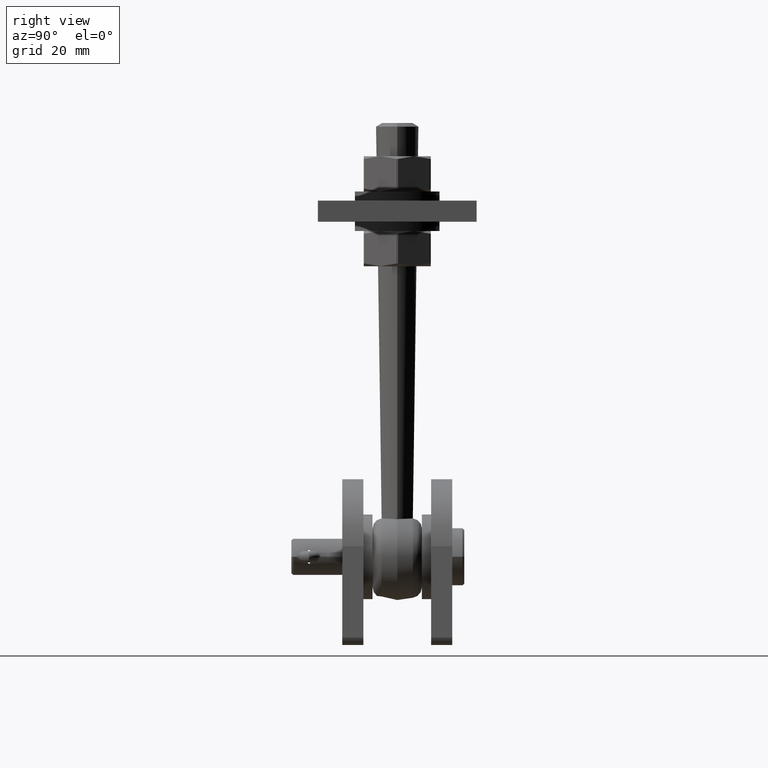
[diagram: clean part render]
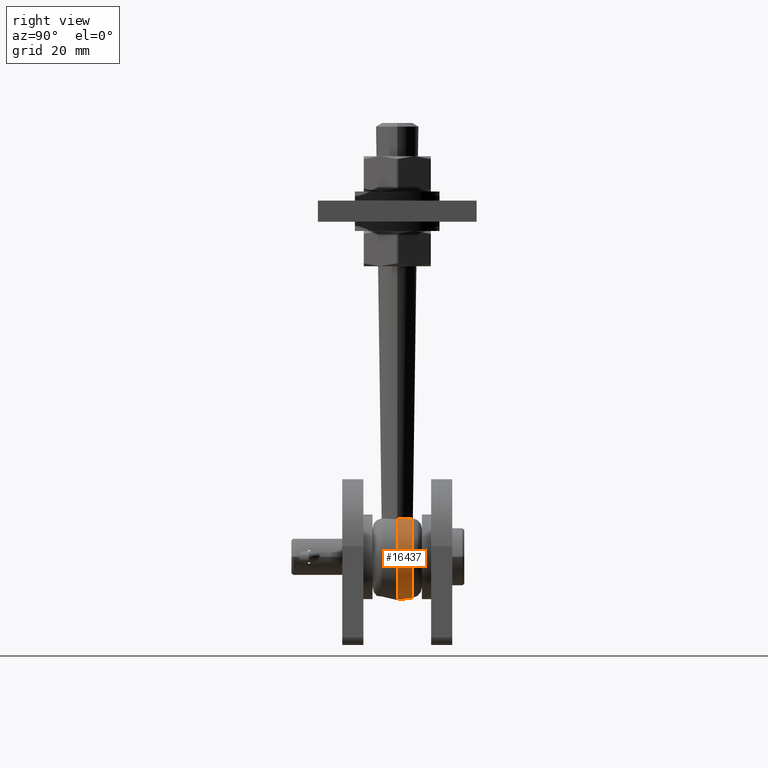
[diagram: same view with one face highlighted and labeled with its STEP entity id]
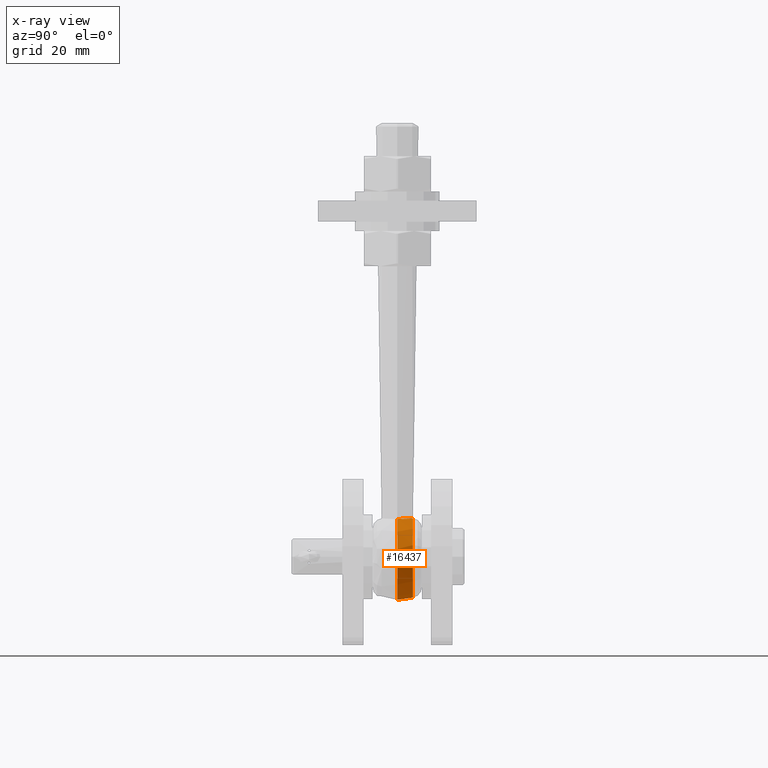
[diagram: x-ray of the same camera — body ghosted, the highlighted face saturated]
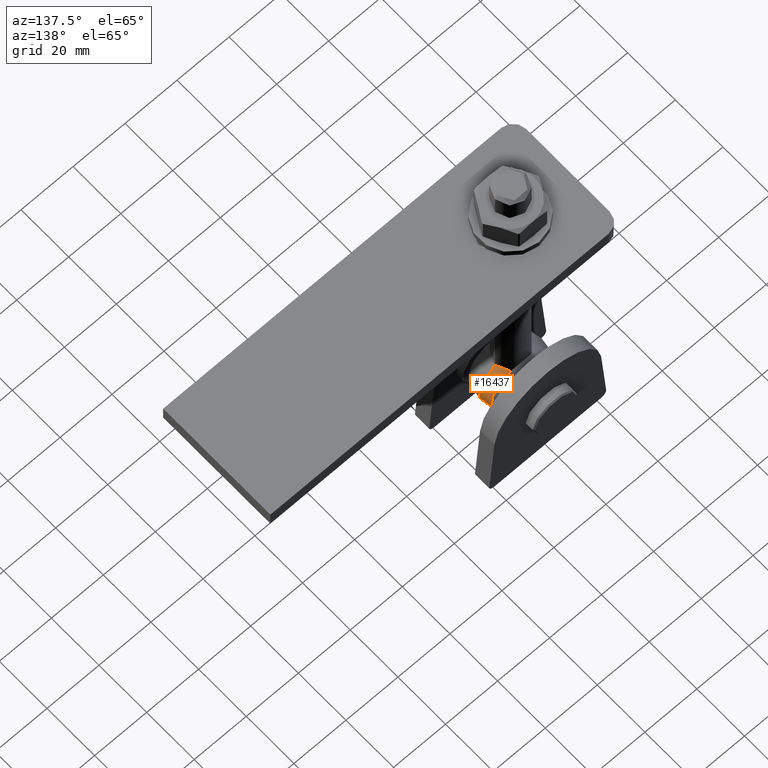
[diagram: same view with one face highlighted and labeled with its STEP entity id]
A machine part, right view. The second image highlights one B-rep face of the part: STEP entity #16437.
The next image is the same camera in x-ray: the body ghosted, the highlighted face saturated — about 0% of this face is hidden behind the body in this view.
A second angle (auxiliary view) of the same face is appended — the face is thin or edge-on in the first view.
In plain terms, the highlighted conical surface has half-angle 8.13 deg.
Its self-contained STEP definition (entity closure, byte-faithful):
#30 = B_SPLINE_CURVE_WITH_KNOTS ( 'NONE', 3,
 ( #13274, #9294, #4055, #14630, #12079, #6649, #4168, #62, #13346, #5383 ),
 .UNSPECIFIED., .F., .F.,
 ( 4, 2, 2, 2, 4 ),
 ( 1.997075450112942525E-07, 0.001245221226256199888, 0.002490242744967388708, 0.003735264263678577529, 0.004980285782389765915 ),
 .UNSPECIFIED. ) ;
#62 = CARTESIAN_POINT ( 'NONE',  ( 4.628785364432085103, 3.840176850458393965, 10.74974455852678545 ) ) ;
#1437 = AXIS2_PLACEMENT_3D ( 'NONE', #15376, #7423, #2130 ) ;
#1478 = VERTEX_POINT ( 'NONE', #15433 ) ;
#1789 = DIRECTION ( 'NONE',  ( 0.000000000000000000, -1.000000000000000000, 0.000000000000000000 ) ) ;
#2130 = DIRECTION ( 'NONE',  ( 0.000000000000000000, 0.000000000000000000, 1.000000000000000000 ) ) ;
#2696 = ORIENTED_EDGE ( 'NONE', *, *, #3497, .T. ) ;
#3069 = CARTESIAN_POINT ( 'NONE',  ( 0.000000000000000000, 1.734723475976807094E-15, -1.469576158976824144E-15 ) ) ;
#3379 = CIRCLE ( 'NONE', #1437, 12.25000000000000000 ) ;
#3497 = EDGE_CURVE ( 'NONE', #4141, #1478, #3379, .T. ) ;
#4055 = CARTESIAN_POINT ( 'NONE',  ( 5.957273684027327043, 0.8267433984706894501, 10.56872820745302377 ) ) ;
#4141 = VERTEX_POINT ( 'NONE', #4438 ) ;
#4168 = CARTESIAN_POINT ( 'NONE',  ( 5.113892609555588997, 3.165551226991907274, 10.63463681237543490 ) ) ;
#4180 = CONICAL_SURFACE ( 'NONE', #11047, 12.25000000000000000, 0.1418970546041642966 ) ;
#4438 = CARTESIAN_POINT ( 'NONE',  ( 6.000000000000000888, 1.467973360395179333E-15, 10.68000468164690986 ) ) ;
#5079 = EDGE_CURVE ( 'NONE', #10023, #12042, #9231, .T. ) ;
#5383 = CARTESIAN_POINT ( 'NONE',  ( 4.052886311050992063, 4.424264068711936559, 10.88812013131244250 ) ) ;
#5735 = DIRECTION ( 'NONE',  ( 0.000000000000000000, -1.000000000000000000, 0.000000000000000000 ) ) ;
#6293 = EDGE_CURVE ( 'NONE', #10023, #1478, #7746, .T. ) ;
#6573 = DIRECTION ( 'NONE',  ( 0.000000000000000000, -0.9899494936611664686, -0.1414213562373098643 ) ) ;
#6649 = CARTESIAN_POINT ( 'NONE',  ( 5.320805270491195671, 2.803786553584365127, 10.58888832320021578 ) ) ;
#6652 = ORIENTED_EDGE ( 'NONE', *, *, #5079, .T. ) ;
#7423 = DIRECTION ( 'NONE',  ( -0.000000000000000000, 1.000000000000000000, -0.000000000000000000 ) ) ;
#7746 = LINE ( 'NONE', #7924, #16289 ) ;
#7924 = CARTESIAN_POINT ( 'NONE',  ( 0.000000000000000000, 1.734723475976807094E-15, -12.25000000000000178 ) ) ;
#8300 = CARTESIAN_POINT ( 'NONE',  ( 0.000000000000000000, 4.424264068711936559, -1.469576158976824144E-15 ) ) ;
#8396 = EDGE_LOOP ( 'NONE', ( #17070, #6652, #16443, #2696 ) ) ;
#9231 = CIRCLE ( 'NONE', #12917, 11.61796227589829478 ) ;
#9294 = CARTESIAN_POINT ( 'NONE',  ( 6.000000000000000000, 0.4156141846890156200, 10.61190313629312953 ) ) ;
#10023 = VERTEX_POINT ( 'NONE', #10374 ) ;
#10374 = CARTESIAN_POINT ( 'NONE',  ( 0.000000000000000000, 4.424264068711936559, -11.61796227589829655 ) ) ;
#11047 = AXIS2_PLACEMENT_3D ( 'NONE', #3069, #5735, #15256 ) ;
#12042 = VERTEX_POINT ( 'NONE', #13807 ) ;
#12079 = CARTESIAN_POINT ( 'NONE',  ( 5.656117928453781474, 2.044631444532510223, 10.53687720132760219 ) ) ;
#12917 = AXIS2_PLACEMENT_3D ( 'NONE', #8300, #1789, #14930 ) ;
#13274 = CARTESIAN_POINT ( 'NONE',  ( 6.000000000000000888, 1.467973360395179333E-15, 10.68000468164690986 ) ) ;
#13346 = CARTESIAN_POINT ( 'NONE',  ( 4.355906172907242357, 4.146680038685604863, 10.81763997893884621 ) ) ;
#13787 = EDGE_CURVE ( 'NONE', #4141, #12042, #30, .T. ) ;
#13807 = CARTESIAN_POINT ( 'NONE',  ( 4.052886311050992063, 4.424264068711936559, 10.88812013131244250 ) ) ;
#14630 = CARTESIAN_POINT ( 'NONE',  ( 5.786468881786182017, 1.639936667508690604, 10.53084344153300833 ) ) ;
#14930 = DIRECTION ( 'NONE',  ( 0.000000000000000000, 0.000000000000000000, 1.000000000000000000 ) ) ;
#15256 = DIRECTION ( 'NONE',  ( 0.000000000000000000, 0.000000000000000000, -1.000000000000000000 ) ) ;
#15376 = CARTESIAN_POINT ( 'NONE',  ( 0.000000000000000000, 1.734723475976807094E-15, -1.469576158976824144E-15 ) ) ;
#15433 = CARTESIAN_POINT ( 'NONE',  ( 0.000000000000000000, 1.734723475976807094E-15, -12.25000000000000178 ) ) ;
#16289 = VECTOR ( 'NONE', #6573, 1000.000000000000000 ) ;
#16437 = ADVANCED_FACE ( 'NONE', ( #16908 ), #4180, .T. ) ;
#16443 = ORIENTED_EDGE ( 'NONE', *, *, #13787, .F. ) ;
#16908 = FACE_OUTER_BOUND ( 'NONE', #8396, .T. ) ;
#17070 = ORIENTED_EDGE ( 'NONE', *, *, #6293, .F. ) ;